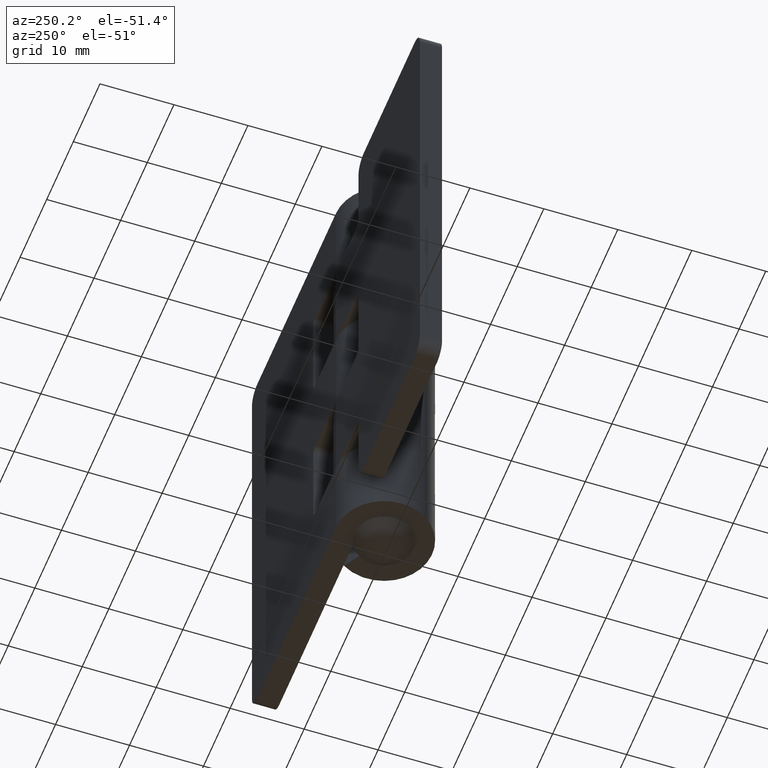
[diagram: clean part render]
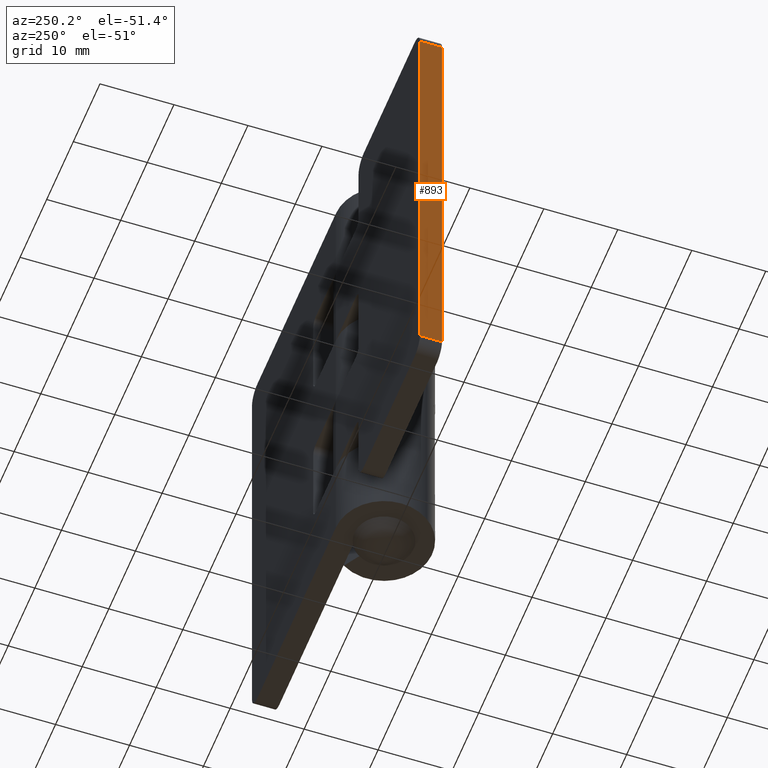
[diagram: same view with one face highlighted and labeled with its STEP entity id]
A machine part, auxiliary view. The second image highlights one B-rep face of the part: STEP entity #893.
In plain terms, the highlighted face is a freeform B-spline surface patch.
Its self-contained STEP definition (entity closure, byte-faithful):
#428=CARTESIAN_POINT('',(-31.500008000000051,3.499999000000000,62.000008000000101));
#429=VERTEX_POINT('',#428);
#450=CARTESIAN_POINT('',(-31.500008000000051,6.499999000000000,62.000008000000101));
#451=VERTEX_POINT('',#450);
#465=CARTESIAN_POINT('',(-31.500008000000051,3.499999000000000,62.000008000000101));
#466=CARTESIAN_POINT('',(-31.500008000000051,6.499999000000000,62.000008000000101));
#467=QUASI_UNIFORM_CURVE('',1,(#465,#466),.UNSPECIFIED.,.F.,.U.);
#468=EDGE_CURVE('',#429,#451,#467,.T.);
#487=CARTESIAN_POINT('',(-31.500008000000051,3.499999000000000,2.0));
#488=VERTEX_POINT('',#487);
#504=CARTESIAN_POINT('',(-31.500008000000051,6.499999000000000,2.0));
#505=VERTEX_POINT('',#504);
#506=CARTESIAN_POINT('',(-31.500008000000051,6.499999000000000,2.0));
#507=CARTESIAN_POINT('',(-31.500008000000051,3.499999000000000,2.0));
#508=QUASI_UNIFORM_CURVE('',1,(#506,#507),.UNSPECIFIED.,.F.,.U.);
#509=EDGE_CURVE('',#505,#488,#508,.T.);
#874=CARTESIAN_POINT('',(-31.500008000000051,3.350149033976436,-0.997000283308347));
#875=CARTESIAN_POINT('',(-31.500008000000051,3.350149033976436,64.997009892634068));
#876=CARTESIAN_POINT('',(-31.500008000000051,6.649849073311926,-0.997000283308347));
#877=CARTESIAN_POINT('',(-31.500008000000051,6.649849073311926,64.997009892634068));
#878=B_SPLINE_SURFACE_WITH_KNOTS('',1,1,((#874,#876),(#875,#877)),.UNSPECIFIED.,.F.,.F.,.U.,(2,2),(2,2),(0.0,65.994010175942421),(0.0,3.299700039335491),.UNSPECIFIED.);
#879=CARTESIAN_POINT('',(-31.500008000000051,6.499999000000000,62.000008000000101));
#880=CARTESIAN_POINT('',(-31.500008000000051,6.499999000000000,2.0));
#881=QUASI_UNIFORM_CURVE('',1,(#879,#880),.UNSPECIFIED.,.F.,.U.);
#882=EDGE_CURVE('',#451,#505,#881,.T.);
#883=ORIENTED_EDGE('',*,*,#882,.T.);
#884=ORIENTED_EDGE('',*,*,#509,.T.);
#885=CARTESIAN_POINT('',(-31.500008000000051,3.499999000000000,62.000008000000101));
#886=CARTESIAN_POINT('',(-31.500008000000051,3.499999000000000,2.0));
#887=QUASI_UNIFORM_CURVE('',1,(#885,#886),.UNSPECIFIED.,.F.,.U.);
#888=EDGE_CURVE('',#429,#488,#887,.T.);
#889=ORIENTED_EDGE('',*,*,#888,.F.);
#890=ORIENTED_EDGE('',*,*,#468,.T.);
#891=EDGE_LOOP('',(#883,#884,#889,#890));
#892=FACE_OUTER_BOUND('',#891,.T.);
#893=ADVANCED_FACE('',(#892),#878,.T.);